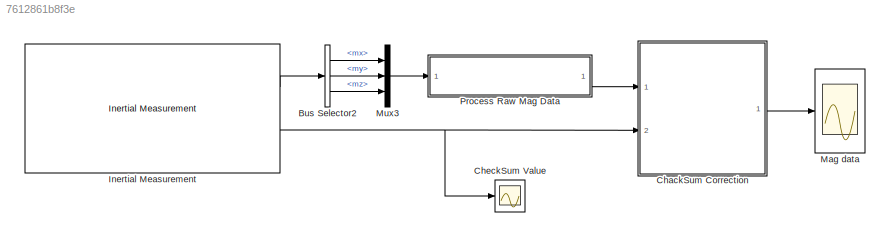
MODEL slx_7612861b8f3e
KIND model
CONFIG AbsTol = auto
CONFIG FixedStep = auto
CONFIG MaxStep = auto
CONFIG MinStep = auto
CONFIG RelTol = 1e-3
CONFIG SampleTimeConstraint = Unconstrained
CONFIG Solver = ode45
CONFIG SolverMode = Auto
CONFIG SolverName = ode45
CONFIG StartTime = 0.0
CONFIG StopTime = 10.0
BLOCK [BusSelector] Bus Selector2
  OutputSignals = mx,my,mz
  Ports = [1, 3]
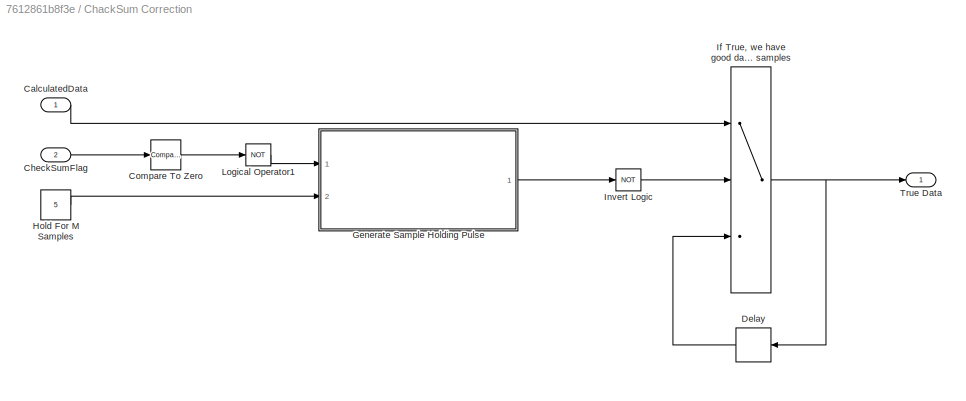
BLOCK [SubSystem] ChackSum Correction
  Ports = [2, 1]
  RequestExecContextInheritance = off
BLOCK [Inport] ChackSum Correction/CalculatedData
  IconDisplay = Port number
BLOCK [Inport] ChackSum Correction/CheckSumFlag
  IconDisplay = Port number
  Port = 2
BLOCK [Reference] ChackSum Correction/Compare To Zero  REF=simulink/Logic and Bit
Operations/Compare
To Zero
  OutDataTypeStr = boolean
  Ports = [1, 1]
  SourceBlock = simulink/Logic and Bit\nOperations/Compare\nTo Zero
  SourceType = Compare To Zero
  ZeroCross = on
  relop = >
BLOCK [Delay] ChackSum Correction/Delay
  DelayLength = 3
  InitialCondition = 0
  InputPortMap = u0
  Ports = [1, 1]
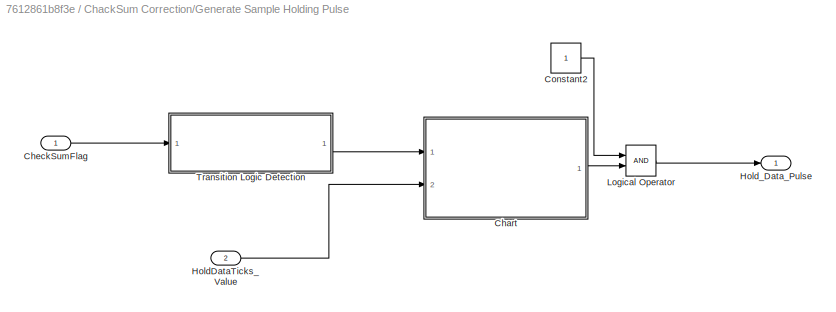
BLOCK [SubSystem] ChackSum Correction/Generate Sample Holding Pulse
  Ports = [2, 1]
  RequestExecContextInheritance = off
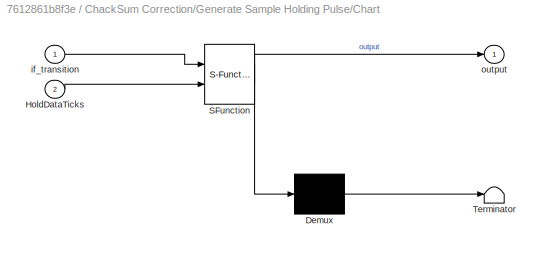
BLOCK [SubSystem] ChackSum Correction/Generate Sample Holding Pulse/Chart
  ErrorFcn = Stateflow.Translate.translate
  PermitHierarchicalResolution = ExplicitOnly
  Ports = [2, 1]
  RequestExecContextInheritance = off
  SFBlockType = Chart
  TreatAsAtomicUnit = on
BLOCK [Demux] ChackSum Correction/Generate Sample Holding Pulse/Chart/ Demux 
  Outputs = 1
  Ports = [1, 1]
BLOCK [S-Function] ChackSum Correction/Generate Sample Holding Pulse/Chart/ SFunction 
  EnableBusSupport = on
  FunctionName = sf_sfun
  PortCounts = [2 2]
  Ports = [2, 2]
  Tag = Stateflow S-Function MeasureMag 2
BLOCK [Terminator] ChackSum Correction/Generate Sample Holding Pulse/Chart/ Terminator 
BLOCK [Inport] ChackSum Correction/Generate Sample Holding Pulse/Chart/HoldDataTicks
  IconDisplay = Port number
  Port = 2
BLOCK [Inport] ChackSum Correction/Generate Sample Holding Pulse/Chart/if_transition
  IconDisplay = Port number
BLOCK [Outport] ChackSum Correction/Generate Sample Holding Pulse/Chart/output
  IconDisplay = Port number
BLOCK [Inport] ChackSum Correction/Generate Sample Holding Pulse/CheckSumFlag
  IconDisplay = Port number
BLOCK [Constant] ChackSum Correction/Generate Sample Holding Pulse/Constant2
BLOCK [Inport] ChackSum Correction/Generate Sample Holding Pulse/HoldDataTicks_Value
  IconDisplay = Port number
  Port = 2
BLOCK [Outport] ChackSum Correction/Generate Sample Holding Pulse/Hold_Data_Pulse
  IconDisplay = Port number
BLOCK [Logic] ChackSum Correction/Generate Sample Holding Pulse/Logical Operator
  AllPortsSameDT = off
  OutDataTypeStr = boolean
  Ports = [2, 1]
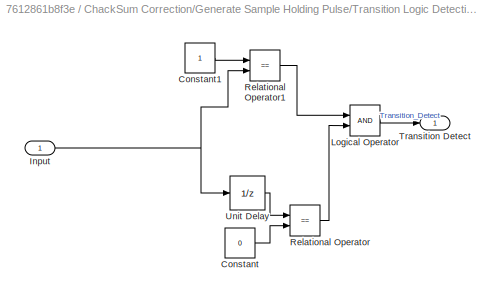
BLOCK [SubSystem] ChackSum Correction/Generate Sample Holding Pulse/Transition Logic Detection
  Ports = [1, 1]
  RequestExecContextInheritance = off
BLOCK [Constant] ChackSum Correction/Generate Sample Holding Pulse/Transition Logic Detection/Constant
  Value = 0
BLOCK [Constant] ChackSum Correction/Generate Sample Holding Pulse/Transition Logic Detection/Constant1
BLOCK [Inport] ChackSum Correction/Generate Sample Holding Pulse/Transition Logic Detection/Input
  IconDisplay = Port number
BLOCK [Logic] ChackSum Correction/Generate Sample Holding Pulse/Transition Logic Detection/Logical Operator
  AllPortsSameDT = off
  OutDataTypeStr = boolean
  Ports = [2, 1]
BLOCK [RelationalOperator] ChackSum Correction/Generate Sample Holding Pulse/Transition Logic Detection/Relational Operator
  InputSameDT = off
  Operator = ==
  OutDataTypeStr = boolean
  Ports = [2, 1]
BLOCK [RelationalOperator] ChackSum Correction/Generate Sample Holding Pulse/Transition Logic Detection/Relational Operator1
  InputSameDT = off
  Operator = ==
  OutDataTypeStr = boolean
  Ports = [2, 1]
BLOCK [Outport] ChackSum Correction/Generate Sample Holding Pulse/Transition Logic Detection/Transition Detect
  IconDisplay = Port number
BLOCK [UnitDelay] ChackSum Correction/Generate Sample Holding Pulse/Transition Logic Detection/Unit Delay
  InputProcessing = Elements as channels (sample based)
  SampleTime = -1
BLOCK [Constant] ChackSum Correction/Hold For M Samples
  Value = 5
BLOCK [Switch] ChackSum Correction/If True, we have good data, If false, we have bad data, With bad data, use previous good data from N samples ago and hold it on that value for M samples
  Criteria = u2 > Threshold
  InputSameDT = off
  SaturateOnIntegerOverflow = off
BLOCK [Logic] ChackSum Correction/Invert Logic
  AllPortsSameDT = off
  Operator = NOT
  OutDataTypeStr = boolean
  Ports = [1, 1]
BLOCK [Logic] ChackSum Correction/Logical Operator1
  AllPortsSameDT = off
  Operator = NOT
  OutDataTypeStr = boolean
  Ports = [1, 1]
BLOCK [Outport] ChackSum Correction/True Data
  IconDisplay = Port number
BLOCK [Scope] CheckSum Value
  DataFormat = StructureWithTime
  Floating = off
  LimitDataPoints = off
  NumInputPorts = 1
  Ports = [1]
  SampleTime = 0
  SaveName = CheckSum1
  SaveToWorkspace = on
  YMax = 2500
  YMin = 0
  ZoomMode = xonly
BLOCK [Reference] Inertial Measurement  REF=AR_Drone_2_Library/Inertial Measurement
  Ports = [0, 2]
  SourceBlock = AR_Drone_2_Library/Inertial Measurement
  Ts = 1/400
BLOCK [Scope] Mag data
  DataFormat = StructureWithTime
  Floating = off
  LimitDataPoints = off
  NumInputPorts = 1
  Ports = [1]
  SampleTime = 0
  SaveName = MagData
  SaveToWorkspace = on
  ShowLegends = on
  TimeRange = 100
  YMax = 150
  YMin = -125
  ZoomMode = yonly
BLOCK [Mux] Mux3
  DisplayOption = bar
  Inputs = 3
  Ports = [3, 1]
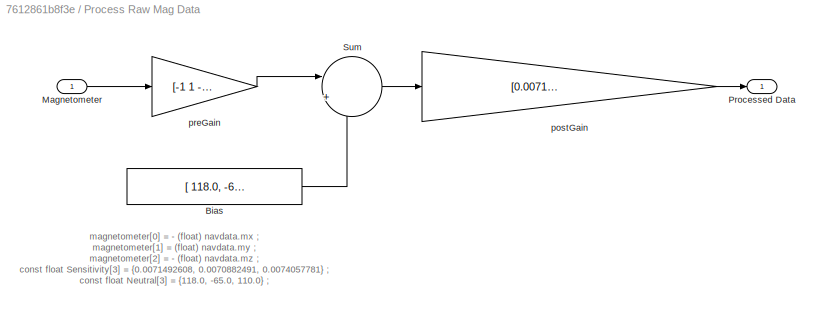
BLOCK [SubSystem] Process Raw Mag Data
  Ports = [1, 1]
  RequestExecContextInheritance = off
BLOCK [Constant] Process Raw Mag Data/Bias
  Value = [ 118.0, -65.0, 110.0 ]
BLOCK [Inport] Process Raw Mag Data/Magnetometer
  IconDisplay = Port number
BLOCK [Outport] Process Raw Mag Data/Processed Data
  IconDisplay = Port number
BLOCK [Sum] Process Raw Mag Data/Sum
  IconShape = round
  InputSameDT = off
  Inputs = |+-
  OutDataTypeStr = Inherit: Inherit via internal rule
  Ports = [2, 1]
  SaturateOnIntegerOverflow = off
BLOCK [Gain] Process Raw Mag Data/postGain
  Gain = [0.0071492608, 0.0070882491, 0.0074057781]
  OutDataTypeStr = Inherit: Inherit via internal rule
  ParamDataTypeStr = Inherit: Inherit via internal rule
  SaturateOnIntegerOverflow = off
BLOCK [Gain] Process Raw Mag Data/preGain
  Gain = [-1 1 -1]
  OutDataTypeStr = Inherit: Inherit via internal rule
  ParamDataTypeStr = Inherit: Inherit via internal rule
  SaturateOnIntegerOverflow = off
ANNOTATION Process Raw Mag Data: magnetometer[ 0 ] = - ( float ) navdata.mx ; magnetometer[ 1 ] = ( float ) navdata.my ; magnetometer[ 2 ] = - ( float ) navdata.mz ; const float Sensitivity[ 3 ] = { 0.0071492608 , 0.0070882491 , 0.0074057781 } ; const float Neutral[ 3 ] = { 118.0 , - 65.0 , 110.0 } ;
LINE Bus Selector2:1 -> Mux3:1
LINE Bus Selector2:2 -> Mux3:2
LINE Bus Selector2:3 -> Mux3:3
LINE ChackSum Correction/CalculatedData:1 -> ChackSum Correction/If True, we have good data, If false, we have bad data, With bad data, use previous good data from N samples ago and hold it on that value for M samples:1
LINE ChackSum Correction/CheckSumFlag:1 -> ChackSum Correction/Compare To Zero:1
LINE ChackSum Correction/Compare To Zero:1 -> ChackSum Correction/Logical Operator1:1
LINE ChackSum Correction/Delay:1 -> ChackSum Correction/If True, we have good data, If false, we have bad data, With bad data, use previous good data from N samples ago and hold it on that value for M samples:3
LINE ChackSum Correction/Generate Sample Holding Pulse/Chart:1 -> ChackSum Correction/Generate Sample Holding Pulse/Logical Operator:2
LINE ChackSum Correction/Generate Sample Holding Pulse/CheckSumFlag:1 -> ChackSum Correction/Generate Sample Holding Pulse/Transition Logic Detection:1
LINE ChackSum Correction/Generate Sample Holding Pulse/Constant2:1 -> ChackSum Correction/Generate Sample Holding Pulse/Logical Operator:1
LINE ChackSum Correction/Generate Sample Holding Pulse/HoldDataTicks_Value:1 -> ChackSum Correction/Generate Sample Holding Pulse/Chart:2
LINE ChackSum Correction/Generate Sample Holding Pulse/Logical Operator:1 -> ChackSum Correction/Generate Sample Holding Pulse/Hold_Data_Pulse:1
LINE ChackSum Correction/Generate Sample Holding Pulse/Transition Logic Detection/Constant1:1 -> ChackSum Correction/Generate Sample Holding Pulse/Transition Logic Detection/Relational Operator1:1
LINE ChackSum Correction/Generate Sample Holding Pulse/Transition Logic Detection/Constant:1 -> ChackSum Correction/Generate Sample Holding Pulse/Transition Logic Detection/Relational Operator:2
NET ChackSum Correction/Generate Sample Holding Pulse/Transition Logic Detection/Input:1 -> ChackSum Correction/Generate Sample Holding Pulse/Transition Logic Detection/Relational Operator1:2, ChackSum Correction/Generate Sample Holding Pulse/Transition Logic Detection/Unit Delay:1
LINE ChackSum Correction/Generate Sample Holding Pulse/Transition Logic Detection/Logical Operator:1 -> ChackSum Correction/Generate Sample Holding Pulse/Transition Logic Detection/Transition Detect:1
LINE ChackSum Correction/Generate Sample Holding Pulse/Transition Logic Detection/Relational Operator1:1 -> ChackSum Correction/Generate Sample Holding Pulse/Transition Logic Detection/Logical Operator:1
LINE ChackSum Correction/Generate Sample Holding Pulse/Transition Logic Detection/Relational Operator:1 -> ChackSum Correction/Generate Sample Holding Pulse/Transition Logic Detection/Logical Operator:2
LINE ChackSum Correction/Generate Sample Holding Pulse/Transition Logic Detection/Unit Delay:1 -> ChackSum Correction/Generate Sample Holding Pulse/Transition Logic Detection/Relational Operator:1
LINE ChackSum Correction/Generate Sample Holding Pulse/Transition Logic Detection:1 -> ChackSum Correction/Generate Sample Holding Pulse/Chart:1
LINE ChackSum Correction/Generate Sample Holding Pulse:1 -> ChackSum Correction/Invert Logic:1
LINE ChackSum Correction/Hold For M Samples:1 -> ChackSum Correction/Generate Sample Holding Pulse:2
NET ChackSum Correction/If True, we have good data, If false, we have bad data, With bad data, use previous good data from N samples ago and hold it on that value for M samples:1 -> ChackSum Correction/Delay:1, ChackSum Correction/True Data:1
LINE ChackSum Correction/Invert Logic:1 -> ChackSum Correction/If True, we have good data, If false, we have bad data, With bad data, use previous good data from N samples ago and hold it on that value for M samples:2
LINE ChackSum Correction/Logical Operator1:1 -> ChackSum Correction/Generate Sample Holding Pulse:1
LINE ChackSum Correction:1 -> Mag data:1
LINE Inertial Measurement:1 -> Bus Selector2:1
NET Inertial Measurement:2 -> ChackSum Correction:2, CheckSum Value:1
LINE Mux3:1 -> Process Raw Mag Data:1
LINE Process Raw Mag Data/Bias:1 -> Process Raw Mag Data/Sum:2
LINE Process Raw Mag Data/Magnetometer:1 -> Process Raw Mag Data/preGain:1
LINE Process Raw Mag Data/Sum:1 -> Process Raw Mag Data/postGain:1
LINE Process Raw Mag Data/postGain:1 -> Process Raw Mag Data/Processed Data:1
LINE Process Raw Mag Data/preGain:1 -> Process Raw Mag Data/Sum:1
LINE Process Raw Mag Data:1 -> ChackSum Correction:1
note: NET lines group one-source signal fan-out (src -> all destinations, sorted); 1:1 wires keep LINE
CHART ChackSum Correction/Generate Sample Holding Pulse/Chart states=3 transitions=5
  STATE_LABEL 'Begin_State0\nentry: output =0;'
  STATE_LABEL 'Begin_State\nentry: output =1;'
  STATE_LABEL 'End_State\nentry: output=0;'
